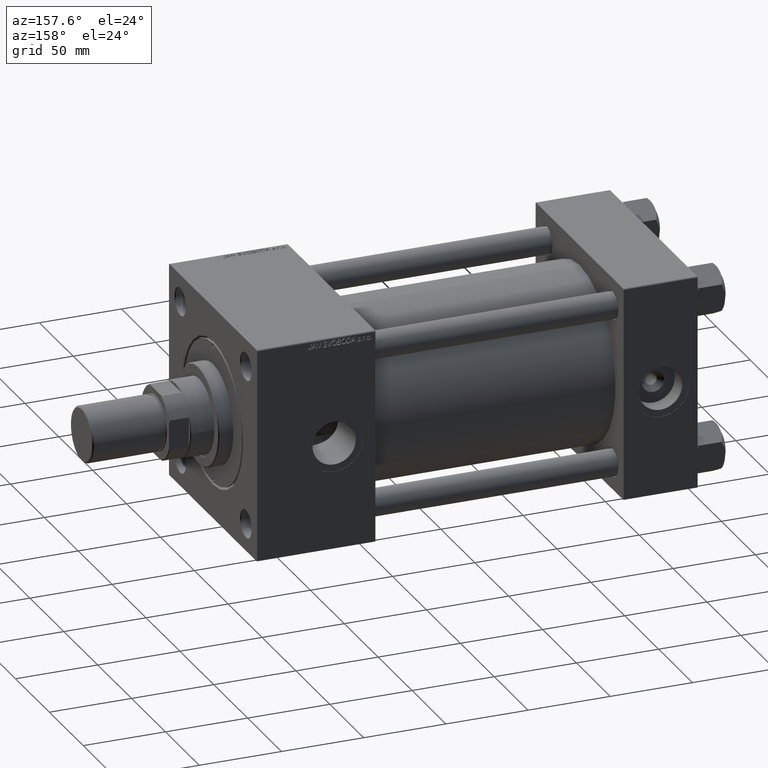
[diagram: clean part render]
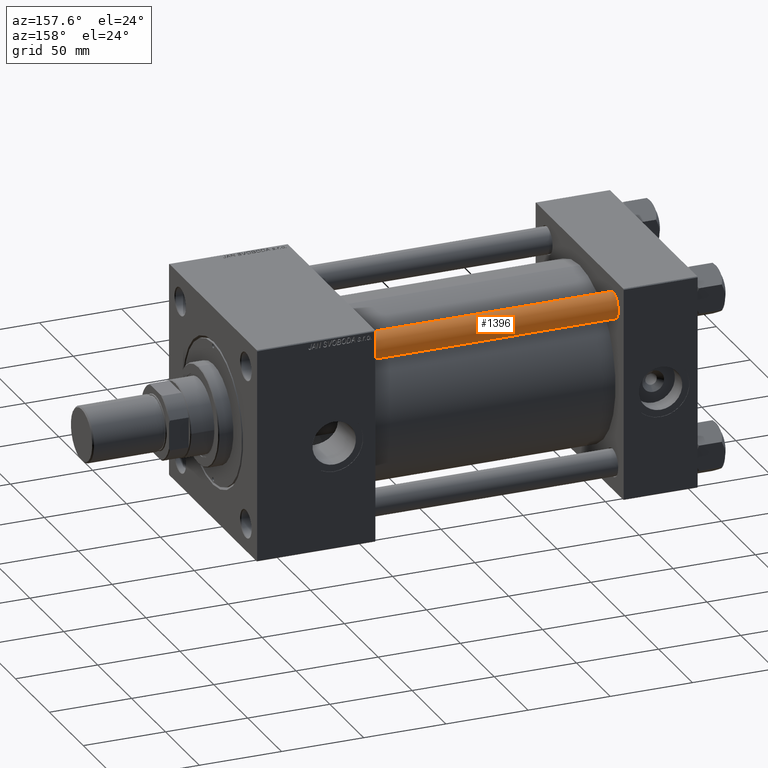
[diagram: same view with one face highlighted and labeled with its STEP entity id]
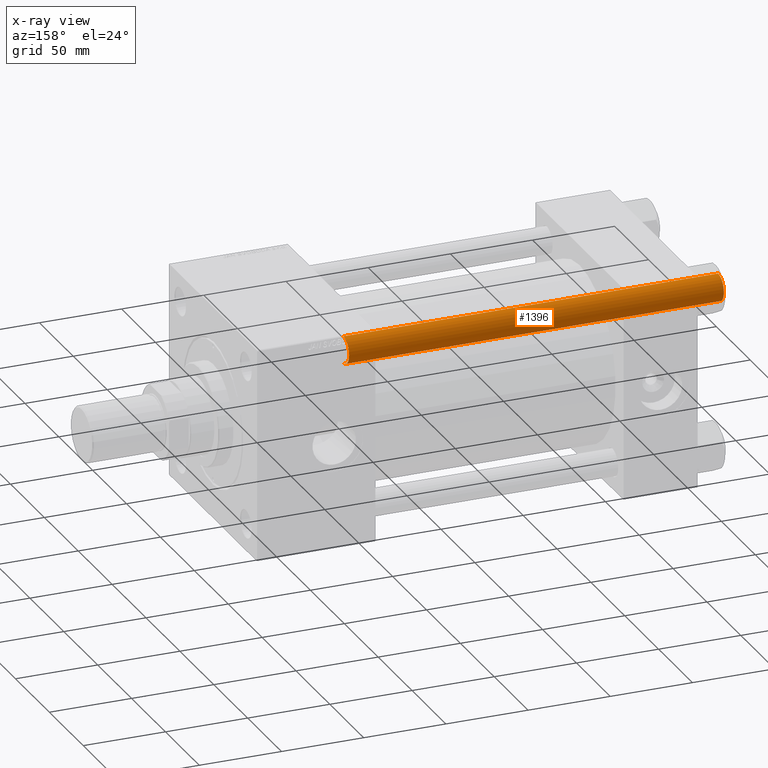
[diagram: x-ray of the same camera — body ghosted, the highlighted face saturated]
A machine part, auxiliary view. The second image highlights one B-rep face of the part: STEP entity #1396.
The next image is the same camera in x-ray: the body ghosted, the highlighted face saturated — about 0% of this face is hidden behind the body in this view.
In plain terms, the highlighted cylindrical surface (edge-blend (fillet) strip) has radius 8 mm, axis along (-1, 0, 0).
Its self-contained STEP definition (entity closure, byte-faithful):
#1132 = AXIS2_PLACEMENT_3D ( 'NONE', #9787, #37265, #12902 ) ;
#1396 = ADVANCED_FACE ( 'NONE', ( #38281 ), #2778, .T. ) ;
#2778 = CYLINDRICAL_SURFACE ( 'NONE', #44053, 8.000000000000000000 ) ;
#5603 = EDGE_CURVE ( 'NONE', #20577, #24413, #18672, .T. ) ;
#7947 = ORIENTED_EDGE ( 'NONE', *, *, #5603, .F. ) ;
#8044 = EDGE_CURVE ( 'NONE', #20577, #50262, #48914, .T. ) ;
#9787 = CARTESIAN_POINT ( 'NONE',  ( 0.000000000000000000, 0.000000000000000000, 0.5000000000001392220 ) ) ;
#10042 = CARTESIAN_POINT ( 'NONE',  ( 0.000000000000000000, 0.000000000000000000, 228.5000000000000853 ) ) ;
#10665 = CARTESIAN_POINT ( 'NONE',  ( -8.000000000000000000, 0.000000000000000000, 229.0000000000000000 ) ) ;
#12902 = DIRECTION ( 'NONE',  ( 1.000000000000000000, 0.000000000000000000, 0.000000000000000000 ) ) ;
#15551 = DIRECTION ( 'NONE',  ( -0.000000000000000000, -0.000000000000000000, -1.000000000000000000 ) ) ;
#17666 = EDGE_LOOP ( 'NONE', ( #44511, #27478, #49738, #7947 ) ) ;
#18284 = EDGE_CURVE ( 'NONE', #43922, #24413, #23476, .T. ) ;
#18562 = CARTESIAN_POINT ( 'NONE',  ( 0.000000000000000000, 0.000000000000000000, 229.0000000000000000 ) ) ;
#18672 = LINE ( 'NONE', #10665, #32558 ) ;
#18873 = CARTESIAN_POINT ( 'NONE',  ( -8.000000000000000000, 0.000000000000000000, 228.5000000000000853 ) ) ;
#19781 = CARTESIAN_POINT ( 'NONE',  ( -8.000000000000000000, 0.000000000000000000, 0.5000000000001392220 ) ) ;
#20577 = VERTEX_POINT ( 'NONE', #18873 ) ;
#20921 = DIRECTION ( 'NONE',  ( 0.000000000000000000, 0.000000000000000000, -1.000000000000000000 ) ) ;
#23476 = CIRCLE ( 'NONE', #1132, 8.000000000000000000 ) ;
#24413 = VERTEX_POINT ( 'NONE', #19781 ) ;
#26049 = EDGE_CURVE ( 'NONE', #50262, #43922, #46732, .T. ) ;
#27478 = ORIENTED_EDGE ( 'NONE', *, *, #26049, .T. ) ;
#29407 = VECTOR ( 'NONE', #49836, 1000.000000000000000 ) ;
#32558 = VECTOR ( 'NONE', #15551, 1000.000000000000000 ) ;
#32858 = DIRECTION ( 'NONE',  ( 1.000000000000000000, 0.000000000000000000, 0.000000000000000000 ) ) ;
#34012 = CARTESIAN_POINT ( 'NONE',  ( 8.000000000000000000, 9.797174393178823685E-16, 229.0000000000000000 ) ) ;
#34390 = DIRECTION ( 'NONE',  ( -0.000000000000000000, -0.000000000000000000, -1.000000000000000000 ) ) ;
#37265 = DIRECTION ( 'NONE',  ( -0.000000000000000000, -0.000000000000000000, 1.000000000000000000 ) ) ;
#37970 = CARTESIAN_POINT ( 'NONE',  ( 8.000000000000000000, 9.797174393178823685E-16, 228.5000000000000853 ) ) ;
#38281 = FACE_OUTER_BOUND ( 'NONE', #17666, .T. ) ;
#39814 = DIRECTION ( 'NONE',  ( -1.000000000000000000, 0.000000000000000000, 0.000000000000000000 ) ) ;
#40770 = CARTESIAN_POINT ( 'NONE',  ( 8.000000000000000000, 9.797174393178823685E-16, 0.5000000000001392220 ) ) ;
#43922 = VERTEX_POINT ( 'NONE', #40770 ) ;
#44053 = AXIS2_PLACEMENT_3D ( 'NONE', #18562, #34390, #39814 ) ;
#44511 = ORIENTED_EDGE ( 'NONE', *, *, #8044, .T. ) ;
#44768 = AXIS2_PLACEMENT_3D ( 'NONE', #10042, #20921, #32858 ) ;
#46732 = LINE ( 'NONE', #34012, #29407 ) ;
#48914 = CIRCLE ( 'NONE', #44768, 8.000000000000000000 ) ;
#49738 = ORIENTED_EDGE ( 'NONE', *, *, #18284, .T. ) ;
#49836 = DIRECTION ( 'NONE',  ( -0.000000000000000000, -0.000000000000000000, -1.000000000000000000 ) ) ;
#50262 = VERTEX_POINT ( 'NONE', #37970 ) ;